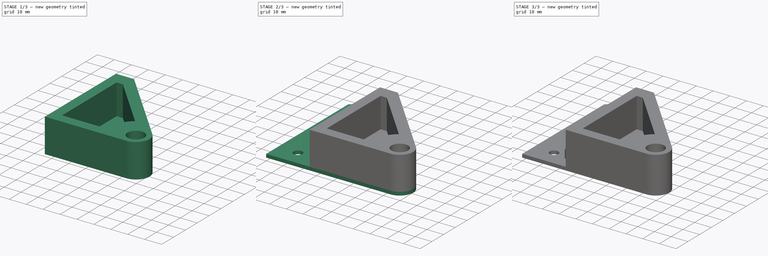
[diagram: build sequence overview — one tinted view per stage of 3, left to right]
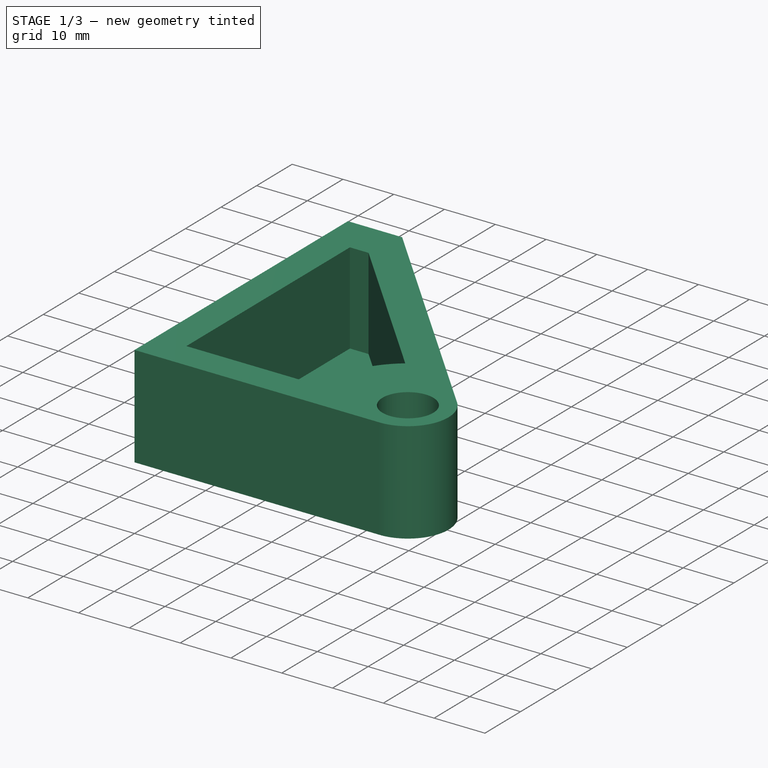
[diagram: stage 1 of 3 — iso view after this stage's code; geometry added in this stage tinted green]
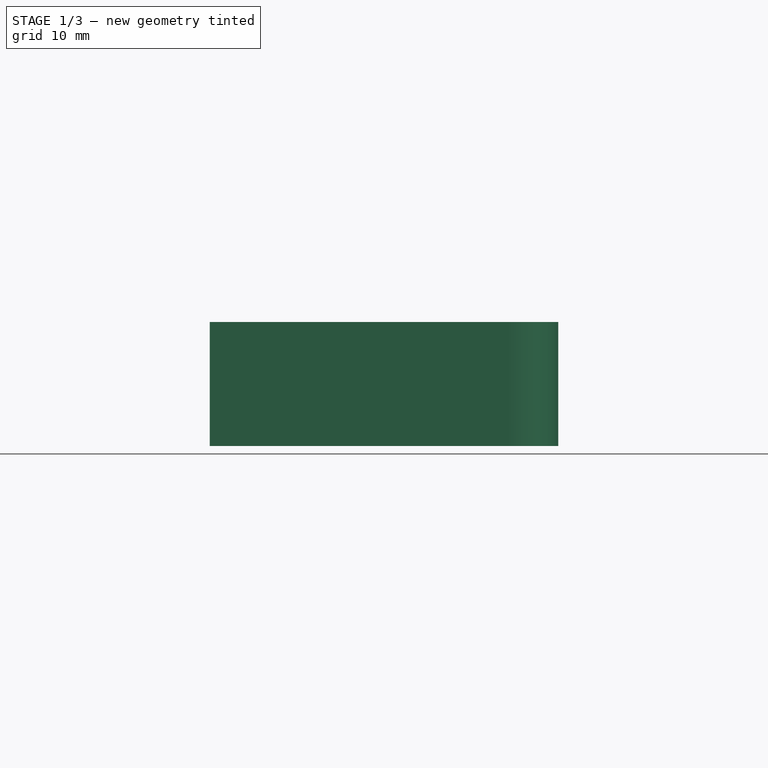
[diagram: stage 1 of 3 — front view after this stage's code; geometry added in this stage tinted green]
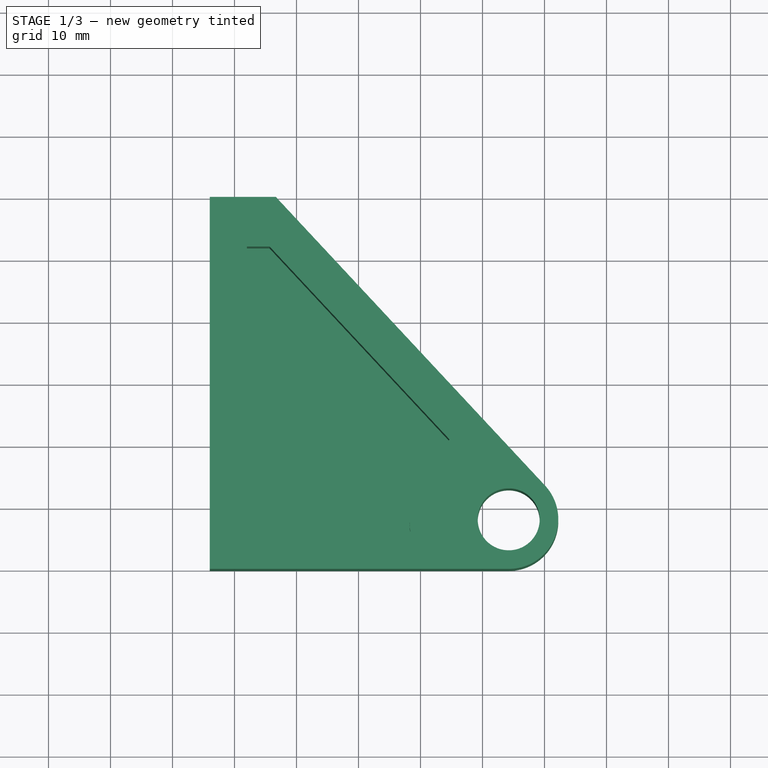
[diagram: stage 1 of 3 — top view after this stage's code; geometry added in this stage tinted green]
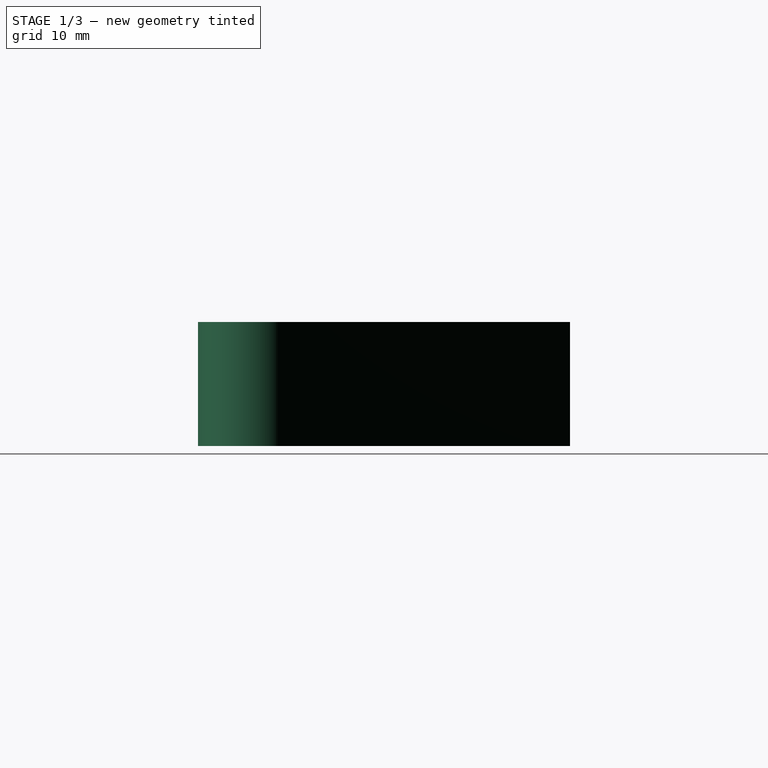
[diagram: stage 1 of 3 — right view after this stage's code; geometry added in this stage tinted green]
FCSTD DOCUMENT  (FreeCAD 0.16RUnknown)
Label: support
License: All rights reserved
LicenseURL: http://en.wikipedia.org/wiki/All_rights_reserved
objects: Sketcher::SketchObject×4, PartDesign::Pad×3, Part::Fuse×2, PartDesign::Pocket×1
note: 14 computed .brp shape members not serialized (recipe doc carries the construction recipe); baked Part::Feature solids carry a one-line shape summary decoded from their .brp

FEATURE [PartDesign::Pad] Pad001
  Length = 20
  Length2 = 100
  Placement = pos=(0,0,2) rot=(0,0,1;0rad)
  Sketch = -> Sketch002
  Type = 0
FEATURE [Sketcher::SketchObject] Sketch004
  Placement = pos=(0,0,22) rot=(0,0,1;0rad)
  Support = -> Pad001 [Face8]
  sketch-geometry (9):
    g0: LineSegment [constr] StartX=36.6111 StartY=60 StartZ=0 EndX=79.8957 EndY=13.2894 EndZ=0
    g1: LineSegment [constr] StartX=36.6111 StartY=60 StartZ=0 EndX=26 EndY=60 EndZ=0
    g2: LineSegment [constr] StartX=26 StartY=60 StartZ=0 EndX=26 EndY=0 EndZ=0
    g3: LineSegment StartX=32 StartY=52 StartZ=0 EndX=35.6618 EndY=52 EndZ=0
    g4: LineSegment StartX=35.6618 StartY=52 StartZ=0 EndX=64.702 EndY=20.8582 EndZ=0
    g5: ArcOfCircle CenterX=74.2239 CenterY=8 CenterZ=0 NormalX=0 NormalY=0 NormalZ=1 Radius=16 StartAngle=2.20821 EndAngle=3.26692
    g6: LineSegment StartX=58.3494 StartY=6 StartZ=0 EndX=32 EndY=6 EndZ=0
    g7: LineSegment StartX=32 StartY=6 StartZ=0 EndX=32 EndY=52 EndZ=0
    g8: LineSegment [constr] StartX=64.702 StartY=20.8582 StartZ=0 EndX=69.103 EndY=24.9364 EndZ=0
  constraints (26):
    c: Coincident(g1,g0)
    c: Horizontal(g1)
    c: Vertical(g2)
    c: DistanceX(g-1,g2) = 26
    c: DistanceY(g-1,g2) = 0
    c: Coincident(g1,g2)
    c: DistanceY(g2,g2) = 60
    c: Horizontal(g3)
    c: Coincident(g4,g3)
    c: Horizontal(g6)
    c: Coincident(g7,g6)
    c: Vertical(g7)
    c: Coincident(g3,g7)
    c: Coincident(g5,g4)
    c: DistanceX(g2,g6) = 6
    c: DistanceY(g3,g1) = 8
    c: DistanceX(g-1,g5) = 74.2239
    c: Radius(g5) = 16
    c: DistanceY(g-1,g5) = 8
    c: Coincident(g8,g4)
    c: PointOnObject(g8,g0)
    c: Perpendicular(g0,g8)
    c: Angle(g7,g4) = 0.750492
    c: Distance(g8) = 6
    c: Coincident(g6,g5)
    c: DistanceY(g-1,g6) = 6
FEATURE [PartDesign::Pocket] Pocket
  Length = 18
  Placement = pos=(0,0,2) rot=(0,0,1;0rad)
  Sketch = -> Sketch004
  Type = 0
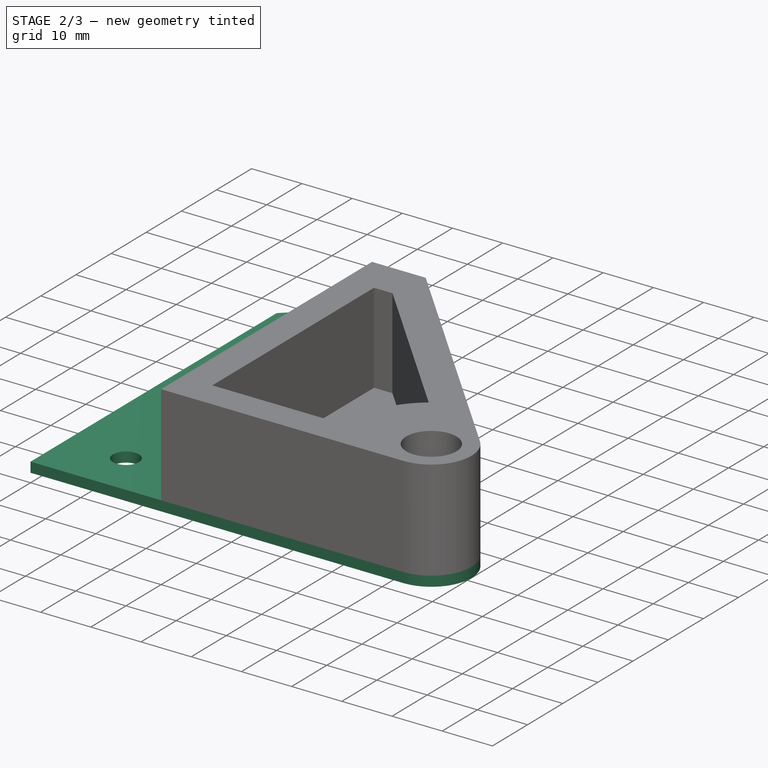
[diagram: stage 2 of 3 — iso view after this stage's code; geometry added in this stage tinted green]
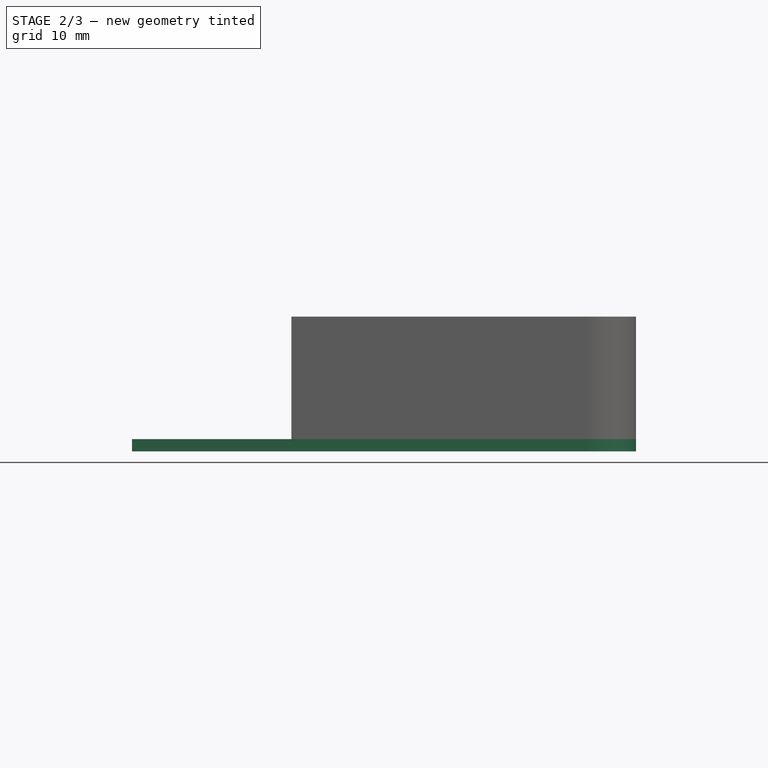
[diagram: stage 2 of 3 — front view after this stage's code; geometry added in this stage tinted green]
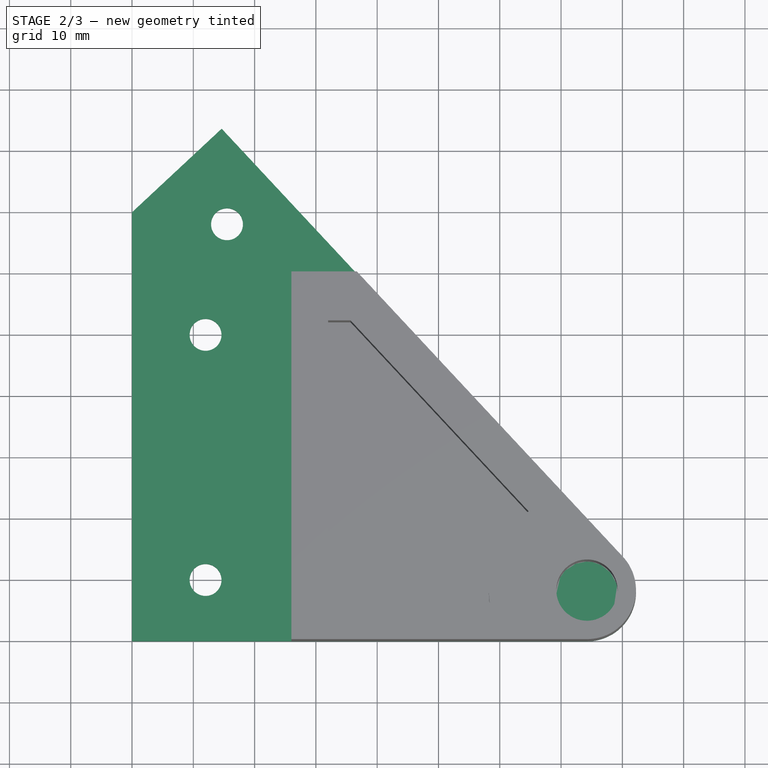
[diagram: stage 2 of 3 — top view after this stage's code; geometry added in this stage tinted green]
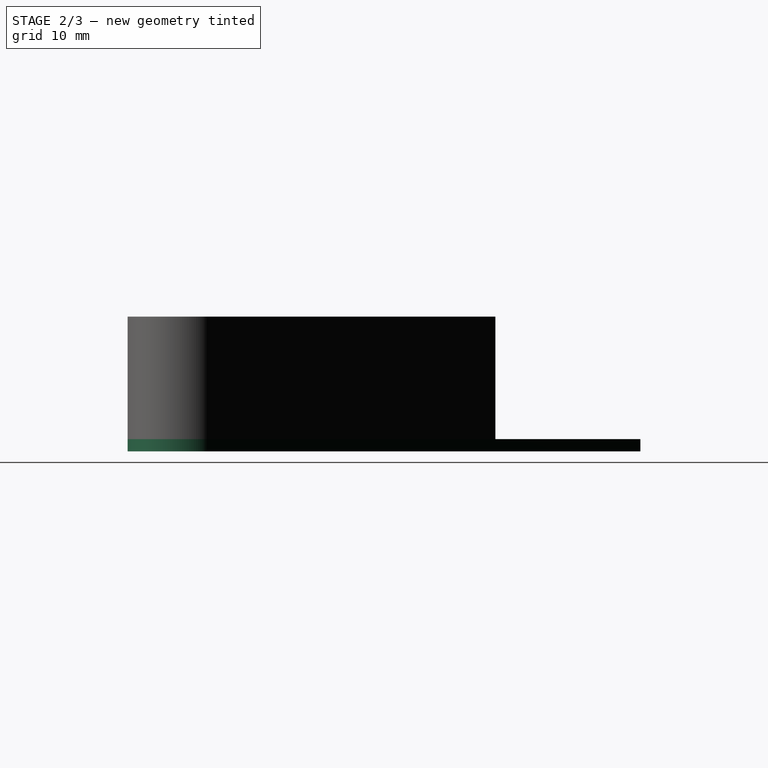
[diagram: stage 2 of 3 — right view after this stage's code; geometry added in this stage tinted green]
FEATURE [Sketcher::SketchObject] Sketch
  sketch-geometry (8):
    g0: LineSegment StartX=0 StartY=0 StartZ=0 EndX=0 EndY=70 EndZ=0
    g1: LineSegment StartX=0 StartY=70 StartZ=0 EndX=14.6271 EndY=83.64 EndZ=0
    g2: LineSegment StartX=14.6271 StartY=83.64 StartZ=0 EndX=80.0747 EndY=13.456 EndZ=0
    g3: LineSegment StartX=0 StartY=0 StartZ=0 EndX=74.2239 EndY=0 EndZ=0
    g4: ArcOfCircle CenterX=74.2239 CenterY=8 CenterZ=0 NormalX=0 NormalY=0 NormalZ=1 Radius=8 StartAngle=4.71239 EndAngle=7.03368
    g5: Circle CenterX=12 CenterY=50 CenterZ=0 NormalX=0 NormalY=0 NormalZ=1 Radius=2.6
    g6: Circle CenterX=12 CenterY=10 CenterZ=0 NormalX=0 NormalY=0 NormalZ=1 Radius=2.6
    g7: Circle CenterX=15.4975 CenterY=68.0437 CenterZ=0 NormalX=0 NormalY=0 NormalZ=1 Radius=2.6
  constraints (22):
    c: Coincident(g0,g-1)
    c: PointOnObject(g0,g-2)
    c: Coincident(g2,g1)
    c: Coincident(g3,g-1)
    c: Horizontal(g3)
    c: Angle(g2,g3) = 0.820305
    c: Angle(g0,g1) = 2.32129
    c: Distance(g1) = 20
    c: Coincident(g0,g1)
    c: DistanceY(g0,g0) = 70
    c: Tangent(g2,g4) = 1.5708
    c: Tangent(g3,g4) = -1.5708
    c: Radius(g4) = 8
    c: DistanceX(g-1,g6) = 12
    c: DistanceX(g-1,g5) = 12
    c: DistanceY(g6,g5) = 40
    c: DistanceY(g-1,g6) = 10
    c: Distance(g7,g2) = 10
    c: Distance(g7,g1) = 12
    c: Radius(g6) = 2.6
    c: Equal(g6,g5)
    c: Equal(g6,g7)
FEATURE [Sketcher::SketchObject] Sketch002
  Placement = pos=(0,0,2) rot=(0,0,1;0rad)
  sketch-geometry (6):
    g0: LineSegment StartX=36.6717 StartY=60 StartZ=0 EndX=80.0747 EndY=13.456 EndZ=0
    g1: ArcOfCircle CenterX=74.2239 CenterY=8 CenterZ=0 NormalX=0 NormalY=0 NormalZ=1 Radius=8 StartAngle=4.71239 EndAngle=7.03368
    g2: Circle CenterX=74.2239 CenterY=8 CenterZ=0 NormalX=0 NormalY=0 NormalZ=1 Radius=5
    g3: LineSegment StartX=36.6717 StartY=60 StartZ=0 EndX=26 EndY=60 EndZ=0
    g4: LineSegment StartX=26 StartY=60 StartZ=0 EndX=26 EndY=0 EndZ=0
    g5: LineSegment StartX=74.2239 StartY=0 StartZ=0 EndX=26 EndY=0 EndZ=0
  constraints (17):
    c: Tangent(g0,g1) = 1.5708
    c: Coincident(g2,g1)
    c: Radius(g2) = 5
    c: Radius(g1) = 8
    c: Coincident(g3,g0)
    c: Horizontal(g3)
    c: Vertical(g4)
    c: Coincident(g5,g1)
    c: Coincident(g5,g4)
    c: Horizontal(g5)
    c: DistanceX(g-1,g4) = 26
    c: Angle(g0,g5) = 0.820305
    c: DistanceY(g-1,g4) = 0
    c: DistanceY(g-1,g1) = 8
    c: DistanceX(g-1,g1) = 74.2239
    c: Coincident(g3,g4)
    c: DistanceY(g4,g4) = 60
FEATURE [PartDesign::Pad] Pad
  Length = 2
  Length2 = 100
  Sketch = -> Sketch
  Type = 0
FEATURE [Part::Fuse] Fusion
  Base = -> Pad
  Tool = -> Pocket
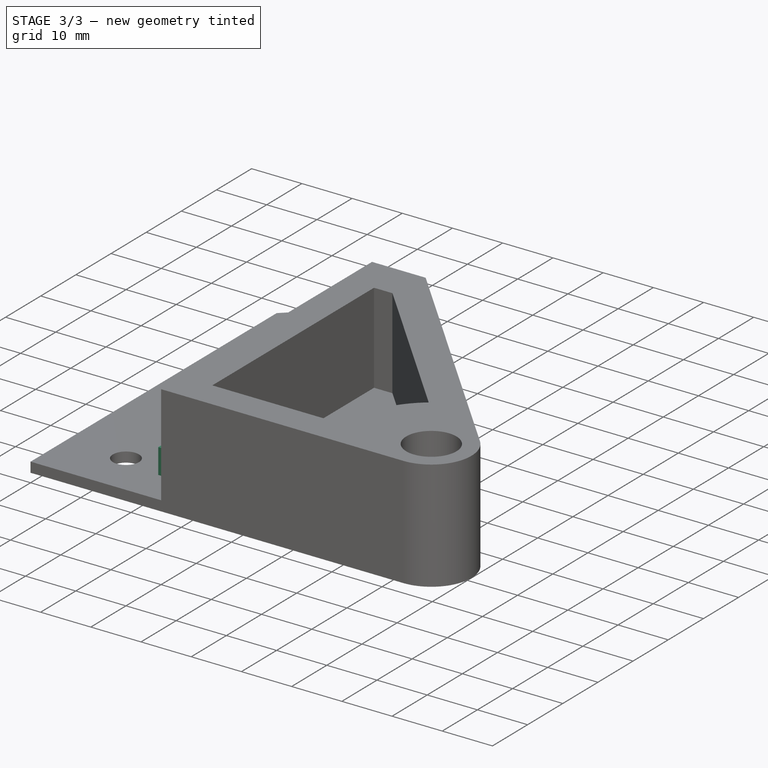
[diagram: stage 3 of 3 — iso view after this stage's code; geometry added in this stage tinted green]
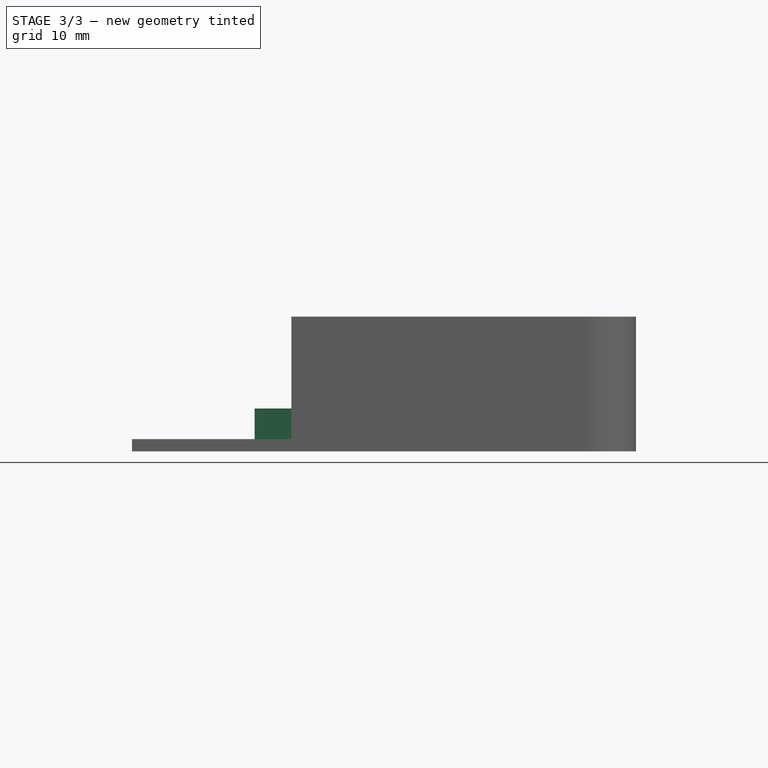
[diagram: stage 3 of 3 — front view after this stage's code; geometry added in this stage tinted green]
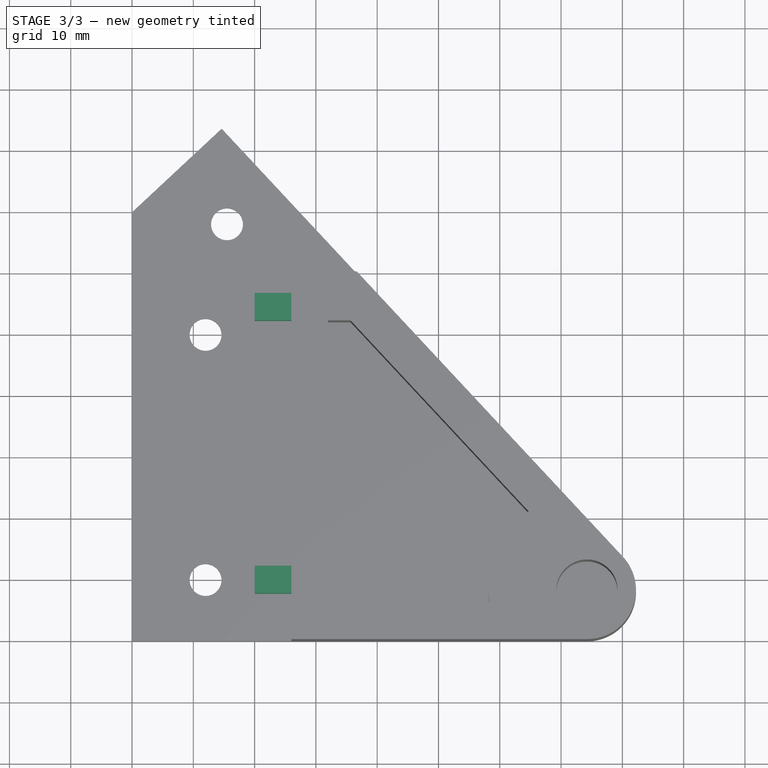
[diagram: stage 3 of 3 — top view after this stage's code; geometry added in this stage tinted green]
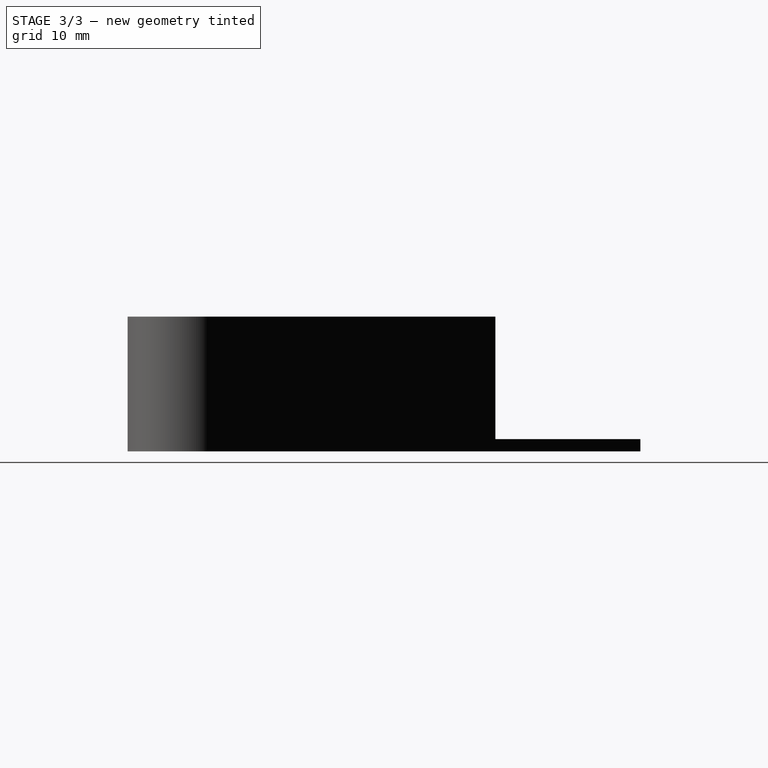
[diagram: stage 3 of 3 — right view after this stage's code; geometry added in this stage tinted green]
FEATURE [Sketcher::SketchObject] Sketch005
  Placement = pos=(0,0,2) rot=(0,0,1;0rad)
  Support = -> Fusion [Face5]
  sketch-geometry (8):
    g0: LineSegment StartX=20 StartY=7.75 StartZ=0 EndX=28 EndY=7.75 EndZ=0
    g1: LineSegment StartX=28 StartY=7.75 StartZ=0 EndX=28 EndY=12.25 EndZ=0
    g2: LineSegment StartX=28 StartY=12.25 StartZ=0 EndX=20 EndY=12.25 EndZ=0
    g3: LineSegment StartX=20 StartY=12.25 StartZ=0 EndX=20 EndY=7.75 EndZ=0
    g4: LineSegment StartX=20 StartY=52.25 StartZ=0 EndX=28 EndY=52.25 EndZ=0
    g5: LineSegment StartX=28 StartY=52.25 StartZ=0 EndX=28 EndY=56.75 EndZ=0
    g6: LineSegment StartX=28 StartY=56.75 StartZ=0 EndX=20 EndY=56.75 EndZ=0
    g7: LineSegment StartX=20 StartY=56.75 StartZ=0 EndX=20 EndY=52.25 EndZ=0
  constraints (24):
    c: Coincident(g0,g1)
    c: Coincident(g1,g2)
    c: Coincident(g2,g3)
    c: Coincident(g3,g0)
    c: Horizontal(g0)
    c: Horizontal(g2)
    c: Vertical(g1)
    c: Vertical(g3)
    c: DistanceX(g-1,g0) = 20
    c: DistanceX(g0,g0) = 8
    c: DistanceY(g1,g1) = 4.5
    c: DistanceY(g-1,g0) = 7.75
    c: Coincident(g4,g5)
    c: Coincident(g5,g6)
    c: Coincident(g6,g7)
    c: Coincident(g7,g4)
    c: Horizontal(g4)
    c: Horizontal(g6)
    c: Vertical(g5)
    c: Vertical(g7)
    c: DistanceY(g7,g7) = 4.5
    c: DistanceY(g2,g4) = 40
    c: DistanceX(g2,g4) = 0
    c: DistanceX(g4,g4) = 8
FEATURE [PartDesign::Pad] Pad002
  Length = 5
  Length2 = 100
  Sketch = -> Sketch005
  Type = 0
FEATURE [Part::Fuse] Fusion001
  Base = -> Pad002
  Tool = -> Fusion
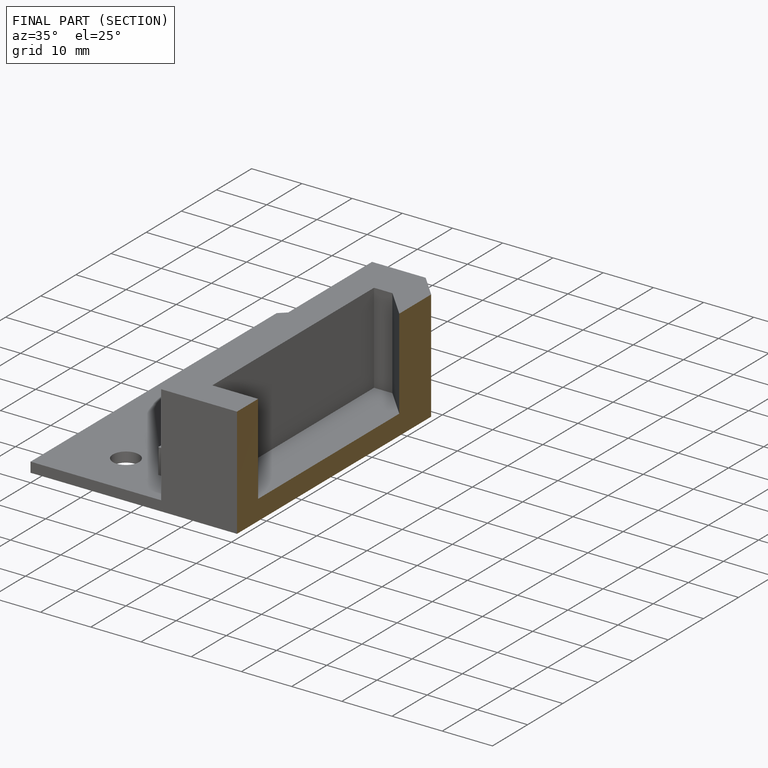
[diagram: finished part — half-section view (interior)]
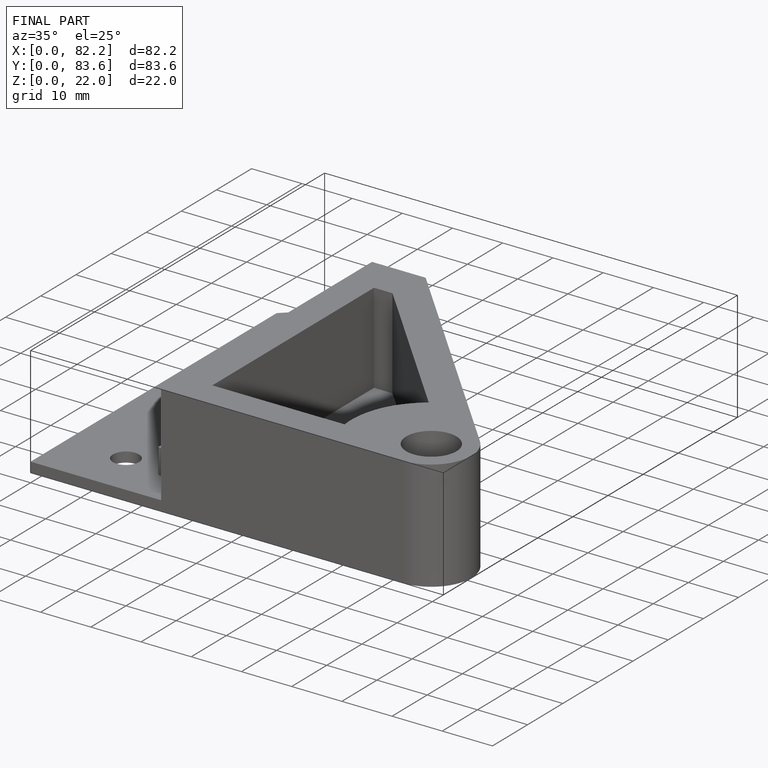
[diagram: finished part — iso view with bounding-box wireframe]
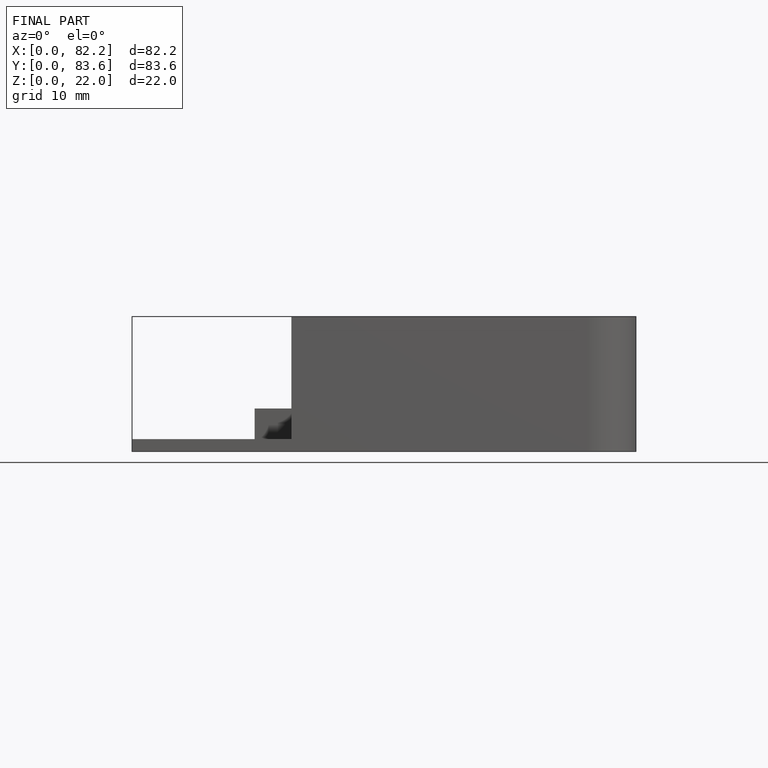
[diagram: finished part — front view with bounding-box wireframe]
